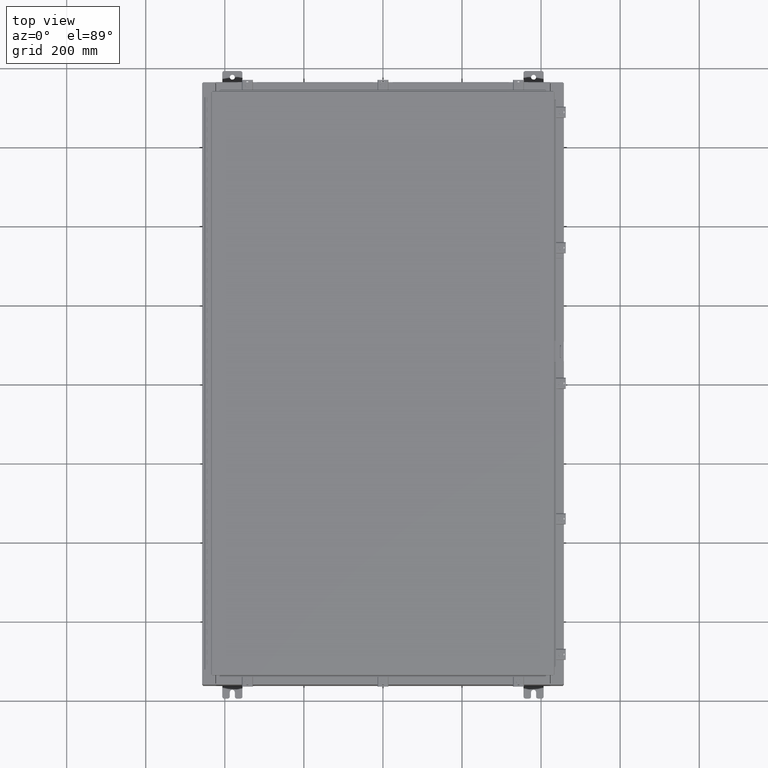
[diagram: clean part render]
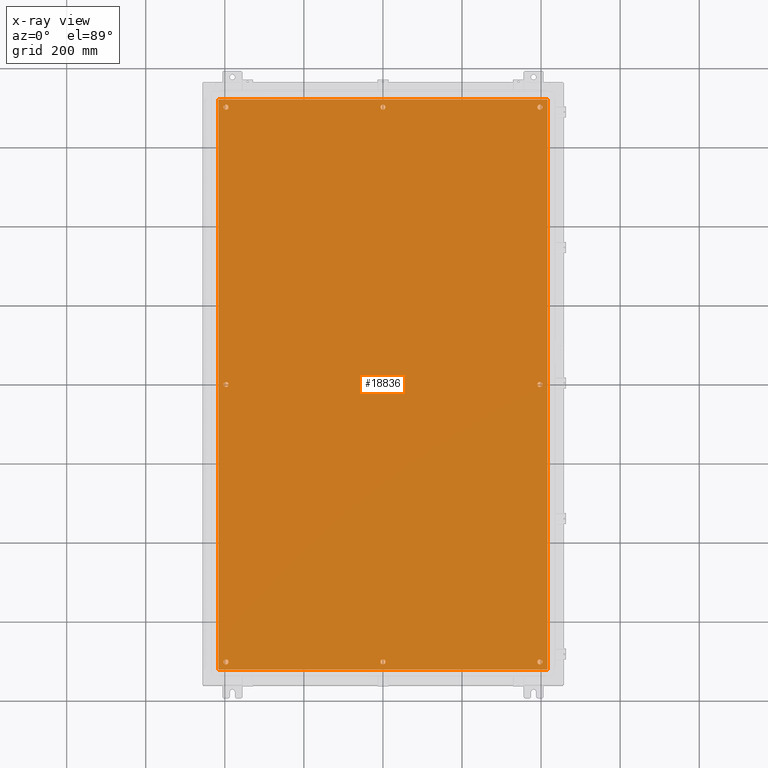
[diagram: x-ray — body ghosted, one internal face saturated and labeled with its STEP entity id]
A machine part, top view, then the same camera in x-ray: the body is ghosted and one INTERNAL B-rep face — a face not visible from any outside direction — is saturated and labeled: STEP entity #18836.
In plain terms, the highlighted planar face has unit normal (0, 0, -1).
Its self-contained STEP definition (entity closure, byte-faithful):
#552 = FACE_BOUND ( 'NONE', #46502, .T. ) ;
#923 = DIRECTION ( 'NONE',  ( -0.0000000000000000000, -0.0000000000000000000, 1.000000000000000000 ) ) ;
#957 = CARTESIAN_POINT ( 'NONE',  ( 0.2499999999999998600, 27.62500000000000000, -0.1039999999999999800 ) ) ;
#1653 = VERTEX_POINT ( 'NONE', #57450 ) ;
#1867 = ORIENTED_EDGE ( 'NONE', *, *, #31578, .T. ) ;
#2081 = CARTESIAN_POINT ( 'NONE',  ( 0.0000000000000000000, -27.62500000000000000, -0.1039999999999999800 ) ) ;
#2138 = CARTESIAN_POINT ( 'NONE',  ( -15.37500000000000900, 27.62500000000000000, -0.1039999999999999800 ) ) ;
#2690 = ORIENTED_EDGE ( 'NONE', *, *, #60956, .T. ) ;
#3044 = VERTEX_POINT ( 'NONE', #5916 ) ;
#4335 = CARTESIAN_POINT ( 'NONE',  ( -15.37500000000000500, -8.298848852119578500E-016, -0.1039999999999999800 ) ) ;
#4345 = VERTEX_POINT ( 'NONE', #40795 ) ;
#5015 = AXIS2_PLACEMENT_3D ( 'NONE', #35952, #5932, #41006 ) ;
#5048 = EDGE_CURVE ( 'NONE', #48228, #54298, #25472, .T. ) ;
#5110 = CARTESIAN_POINT ( 'NONE',  ( -0.2499999999999998600, 27.62500000000000000, -0.1039999999999999800 ) ) ;
#5254 = EDGE_CURVE ( 'NONE', #54298, #48228, #14514, .T. ) ;
#5428 = CARTESIAN_POINT ( 'NONE',  ( -16.38299999999999900, 28.38299999999998800, -0.1040000000000009100 ) ) ;
#5487 = VERTEX_POINT ( 'NONE', #957 ) ;
#5602 = EDGE_LOOP ( 'NONE', ( #55581, #6358 ) ) ;
#5851 = VERTEX_POINT ( 'NONE', #20416 ) ;
#5916 = CARTESIAN_POINT ( 'NONE',  ( 16.38299999999999900, 28.38299999999998800, -0.1040000000000009100 ) ) ;
#5932 = DIRECTION ( 'NONE',  ( -0.0000000000000000000, -0.0000000000000000000, 1.000000000000000000 ) ) ;
#5937 = CARTESIAN_POINT ( 'NONE',  ( 0.0000000000000000000, 27.62500000000000000, -0.1039999999999999800 ) ) ;
#6002 = VERTEX_POINT ( 'NONE', #14684 ) ;
#6038 = CARTESIAN_POINT ( 'NONE',  ( -15.62500000000001100, 27.62500000000000000, -0.1039999999999999800 ) ) ;
#6358 = ORIENTED_EDGE ( 'NONE', *, *, #63969, .T. ) ;
#6682 = EDGE_CURVE ( 'NONE', #5487, #37511, #46946, .T. ) ;
#7013 = DIRECTION ( 'NONE',  ( -1.000000000000000000, 0.0000000000000000000, 0.0000000000000000000 ) ) ;
#7482 = EDGE_CURVE ( 'NONE', #14379, #43139, #61468, .T. ) ;
#7521 = EDGE_LOOP ( 'NONE', ( #11117, #23542 ) ) ;
#7668 = EDGE_CURVE ( 'NONE', #21527, #3044, #12368, .T. ) ;
#8131 = CARTESIAN_POINT ( 'NONE',  ( 15.62500000000000500, 2.997136362123522700E-015, -0.1039999999999999800 ) ) ;
#8157 = DIRECTION ( 'NONE',  ( -0.0000000000000000000, -0.0000000000000000000, 1.000000000000000000 ) ) ;
#10074 = ORIENTED_EDGE ( 'NONE', *, *, #61109, .F. ) ;
#10106 = EDGE_LOOP ( 'NONE', ( #54315, #13879 ) ) ;
#11062 = DIRECTION ( 'NONE',  ( -1.000000000000000000, 0.0000000000000000000, 0.0000000000000000000 ) ) ;
#11117 = ORIENTED_EDGE ( 'NONE', *, *, #7482, .T. ) ;
#11231 = ORIENTED_EDGE ( 'NONE', *, *, #51372, .T. ) ;
#11317 = CARTESIAN_POINT ( 'NONE',  ( -15.87500000000000700, -27.62500000000000000, -0.1039999999999999800 ) ) ;
#11623 = DIRECTION ( 'NONE',  ( -0.0000000000000000000, -0.0000000000000000000, 1.000000000000000000 ) ) ;
#12259 = FACE_BOUND ( 'NONE', #62590, .T. ) ;
#12274 = VECTOR ( 'NONE', #52940, 39.37007874015748100 ) ;
#12368 = LINE ( 'NONE', #53681, #15537 ) ;
#12849 = AXIS2_PLACEMENT_3D ( 'NONE', #16606, #51474, #21612 ) ;
#12875 = DIRECTION ( 'NONE',  ( -0.0000000000000000000, -0.0000000000000000000, 1.000000000000000000 ) ) ;
#13226 = DIRECTION ( 'NONE',  ( -1.000000000000000000, 0.0000000000000000000, 0.0000000000000000000 ) ) ;
#13284 = ORIENTED_EDGE ( 'NONE', *, *, #48054, .T. ) ;
#13594 = DIRECTION ( 'NONE',  ( -0.0000000000000000000, -0.0000000000000000000, 1.000000000000000000 ) ) ;
#13826 = AXIS2_PLACEMENT_3D ( 'NONE', #36123, #57044, #30111 ) ;
#13879 = ORIENTED_EDGE ( 'NONE', *, *, #46025, .T. ) ;
#14192 = AXIS2_PLACEMENT_3D ( 'NONE', #5937, #923, #41760 ) ;
#14379 = VERTEX_POINT ( 'NONE', #4335 ) ;
#14392 = VERTEX_POINT ( 'NONE', #26852 ) ;
#14514 = CIRCLE ( 'NONE', #49661, 0.2499999999999987000 ) ;
#14684 = CARTESIAN_POINT ( 'NONE',  ( -16.38299999999999900, -28.38300000000000600, -0.1040000000000009400 ) ) ;
#14881 = AXIS2_PLACEMENT_3D ( 'NONE', #43566, #13594, #48534 ) ;
#15130 = VERTEX_POINT ( 'NONE', #38849 ) ;
#15449 = EDGE_CURVE ( 'NONE', #37511, #5487, #55674, .T. ) ;
#15537 = VECTOR ( 'NONE', #53049, 39.37007874015748100 ) ;
#15641 = CARTESIAN_POINT ( 'NONE',  ( -15.62500000000000900, -27.62500000000000000, -0.1039999999999999800 ) ) ;
#15777 = DIRECTION ( 'NONE',  ( -0.0000000000000000000, -0.0000000000000000000, 1.000000000000000000 ) ) ;
#16025 = EDGE_LOOP ( 'NONE', ( #11231, #2690 ) ) ;
#16606 = CARTESIAN_POINT ( 'NONE',  ( 15.62500000000000900, 27.62500000000000000, -0.1039999999999999800 ) ) ;
#16608 = CIRCLE ( 'NONE', #5015, 0.2500000000000008900 ) ;
#18008 = CIRCLE ( 'NONE', #31145, 0.2500000000000008900 ) ;
#18712 = EDGE_LOOP ( 'NONE', ( #34322, #38317 ) ) ;
#18836 = ADVANCED_FACE ( 'NONE', ( #25584, #27145, #552, #38903, #12259, #63638, #50555, #37334, #24014 ), #45775, .T. ) ;
#19899 = CIRCLE ( 'NONE', #14881, 0.2499999999999987000 ) ;
#20416 = CARTESIAN_POINT ( 'NONE',  ( 15.87500000000000700, 27.62500000000000000, -0.1039999999999999800 ) ) ;
#20591 = VERTEX_POINT ( 'NONE', #52318 ) ;
#21527 = VERTEX_POINT ( 'NONE', #39999 ) ;
#21612 = DIRECTION ( 'NONE',  ( -1.000000000000000000, 0.0000000000000000000, 0.0000000000000000000 ) ) ;
#21664 = EDGE_CURVE ( 'NONE', #30718, #1653, #62068, .T. ) ;
#22326 = DIRECTION ( 'NONE',  ( -1.000000000000000000, 0.0000000000000000000, 0.0000000000000000000 ) ) ;
#22441 = DIRECTION ( 'NONE',  ( 0.0000000000000000000, -1.000000000000000000, 0.0000000000000000000 ) ) ;
#22862 = LINE ( 'NONE', #57250, #31423 ) ;
#23542 = ORIENTED_EDGE ( 'NONE', *, *, #53157, .T. ) ;
#23661 = CARTESIAN_POINT ( 'NONE',  ( 15.87500000000000700, 2.997136362123522700E-015, -0.1039999999999999800 ) ) ;
#23725 = ORIENTED_EDGE ( 'NONE', *, *, #7668, .F. ) ;
#24014 = FACE_OUTER_BOUND ( 'NONE', #58914, .T. ) ;
#24684 = CARTESIAN_POINT ( 'NONE',  ( 0.2500000000000011700, -27.62500000000000000, -0.1039999999999999800 ) ) ;
#24980 = CARTESIAN_POINT ( 'NONE',  ( 15.62500000000000900, -27.62500000000000000, -0.1039999999999999800 ) ) ;
#25465 = CIRCLE ( 'NONE', #53253, 0.2500000000000008900 ) ;
#25472 = CIRCLE ( 'NONE', #64073, 0.2499999999999987000 ) ;
#25584 = FACE_BOUND ( 'NONE', #36135, .T. ) ;
#25598 = LINE ( 'NONE', #32965, #12274 ) ;
#25845 = ORIENTED_EDGE ( 'NONE', *, *, #5048, .T. ) ;
#26852 = CARTESIAN_POINT ( 'NONE',  ( 15.87500000000000700, -27.62500000000000000, -0.1039999999999999800 ) ) ;
#26903 = EDGE_CURVE ( 'NONE', #30200, #6002, #22862, .T. ) ;
#27145 = FACE_BOUND ( 'NONE', #18712, .T. ) ;
#28611 = ORIENTED_EDGE ( 'NONE', *, *, #41220, .T. ) ;
#29007 = CIRCLE ( 'NONE', #33855, 0.2500000000000008900 ) ;
#29671 = AXIS2_PLACEMENT_3D ( 'NONE', #6038, #41130, #11062 ) ;
#29981 = DIRECTION ( 'NONE',  ( -1.000000000000000000, 0.0000000000000000000, 0.0000000000000000000 ) ) ;
#30111 = DIRECTION ( 'NONE',  ( -1.000000000000000000, 0.0000000000000000000, 0.0000000000000000000 ) ) ;
#30200 = VERTEX_POINT ( 'NONE', #5428 ) ;
#30718 = VERTEX_POINT ( 'NONE', #24684 ) ;
#30995 = CARTESIAN_POINT ( 'NONE',  ( -15.37500000000000900, -27.62500000000000000, -0.1039999999999999800 ) ) ;
#31045 = AXIS2_PLACEMENT_3D ( 'NONE', #2081, #37078, #7013 ) ;
#31145 = AXIS2_PLACEMENT_3D ( 'NONE', #8131, #43232, #13226 ) ;
#31423 = VECTOR ( 'NONE', #22441, 39.37007874015748100 ) ;
#31578 = EDGE_CURVE ( 'NONE', #15130, #54021, #16608, .T. ) ;
#32965 = CARTESIAN_POINT ( 'NONE',  ( 16.50000000000000000, 28.38299999999999600, -0.1040000000000009400 ) ) ;
#33676 = CARTESIAN_POINT ( 'NONE',  ( -15.62500000000000900, -27.62500000000000000, -0.1039999999999999800 ) ) ;
#33855 = AXIS2_PLACEMENT_3D ( 'NONE', #45714, #15777, #50677 ) ;
#33940 = VERTEX_POINT ( 'NONE', #2138 ) ;
#34322 = ORIENTED_EDGE ( 'NONE', *, *, #6682, .T. ) ;
#35121 = AXIS2_PLACEMENT_3D ( 'NONE', #50807, #12875, #48477 ) ;
#35686 = VECTOR ( 'NONE', #45237, 39.37007874015748100 ) ;
#35757 = DIRECTION ( 'NONE',  ( -1.000000000000000000, 0.0000000000000000000, 0.0000000000000000000 ) ) ;
#35952 = CARTESIAN_POINT ( 'NONE',  ( 15.62500000000000500, 2.997136362123522700E-015, -0.1039999999999999800 ) ) ;
#36123 = CARTESIAN_POINT ( 'NONE',  ( 0.0000000000000000000, -27.62500000000000000, -0.1039999999999999800 ) ) ;
#36135 = EDGE_LOOP ( 'NONE', ( #41937, #13284 ) ) ;
#37078 = DIRECTION ( 'NONE',  ( -0.0000000000000000000, -0.0000000000000000000, 1.000000000000000000 ) ) ;
#37287 = LINE ( 'NONE', #40258, #35686 ) ;
#37334 = FACE_BOUND ( 'NONE', #10106, .T. ) ;
#37511 = VERTEX_POINT ( 'NONE', #5110 ) ;
#37840 = DIRECTION ( 'NONE',  ( -0.0000000000000000000, -0.0000000000000000000, 1.000000000000000000 ) ) ;
#38212 = CARTESIAN_POINT ( 'NONE',  ( 15.62500000000000900, -27.62500000000000000, -0.1039999999999999800 ) ) ;
#38317 = ORIENTED_EDGE ( 'NONE', *, *, #15449, .T. ) ;
#38849 = CARTESIAN_POINT ( 'NONE',  ( 15.37500000000000500, 3.027752532102206500E-015, -0.1039999999999999800 ) ) ;
#38903 = FACE_BOUND ( 'NONE', #7521, .T. ) ;
#39297 = CARTESIAN_POINT ( 'NONE',  ( 15.37500000000000900, 27.62500000000000000, -0.1039999999999999800 ) ) ;
#39409 = DIRECTION ( 'NONE',  ( -1.000000000000000000, 0.0000000000000000000, -0.0000000000000000000 ) ) ;
#39999 = CARTESIAN_POINT ( 'NONE',  ( 16.38299999999999900, -28.38300000000000600, -0.1040000000000009100 ) ) ;
#40258 = CARTESIAN_POINT ( 'NONE',  ( -16.50000000000000000, -28.38300000000000600, -0.1040000000000009400 ) ) ;
#40540 = CIRCLE ( 'NONE', #29671, 0.2500000000000008900 ) ;
#40795 = CARTESIAN_POINT ( 'NONE',  ( -15.87500000000001100, 27.62500000000000000, -0.1039999999999999800 ) ) ;
#41006 = DIRECTION ( 'NONE',  ( -1.000000000000000000, 0.0000000000000000000, 0.0000000000000000000 ) ) ;
#41130 = DIRECTION ( 'NONE',  ( -0.0000000000000000000, -0.0000000000000000000, 1.000000000000000000 ) ) ;
#41220 = EDGE_CURVE ( 'NONE', #54021, #15130, #18008, .T. ) ;
#41672 = CARTESIAN_POINT ( 'NONE',  ( -15.62500000000001100, 27.62500000000000000, -0.1039999999999999800 ) ) ;
#41760 = DIRECTION ( 'NONE',  ( -1.000000000000000000, 0.0000000000000000000, 0.0000000000000000000 ) ) ;
#41937 = ORIENTED_EDGE ( 'NONE', *, *, #21664, .T. ) ;
#43139 = VERTEX_POINT ( 'NONE', #55857 ) ;
#43232 = DIRECTION ( 'NONE',  ( -0.0000000000000000000, -0.0000000000000000000, 1.000000000000000000 ) ) ;
#43264 = DIRECTION ( 'NONE',  ( -1.000000000000000000, 0.0000000000000000000, 0.0000000000000000000 ) ) ;
#43566 = CARTESIAN_POINT ( 'NONE',  ( 15.62500000000000900, 27.62500000000000000, -0.1039999999999999800 ) ) ;
#43891 = DIRECTION ( 'NONE',  ( 0.0000000000000000000, 0.0000000000000000000, -1.000000000000000000 ) ) ;
#45237 = DIRECTION ( 'NONE',  ( 1.000000000000000000, -0.0000000000000000000, -0.0000000000000000000 ) ) ;
#45579 = DIRECTION ( 'NONE',  ( -0.0000000000000000000, -0.0000000000000000000, 1.000000000000000000 ) ) ;
#45714 = CARTESIAN_POINT ( 'NONE',  ( -15.62500000000000500, -8.298848852119578500E-016, -0.1039999999999999800 ) ) ;
#45775 = PLANE ( 'NONE',  #54191 ) ;
#45899 = CARTESIAN_POINT ( 'NONE',  ( 0.0000000000000000000, 0.0000000000000000000, -0.1039999999999999800 ) ) ;
#46025 = EDGE_CURVE ( 'NONE', #4345, #33940, #40540, .T. ) ;
#46502 = EDGE_LOOP ( 'NONE', ( #28611, #1867 ) ) ;
#46651 = DIRECTION ( 'NONE',  ( -1.000000000000000000, 0.0000000000000000000, 0.0000000000000000000 ) ) ;
#46946 = CIRCLE ( 'NONE', #60015, 0.2499999999999998600 ) ;
#48054 = EDGE_CURVE ( 'NONE', #1653, #30718, #51725, .T. ) ;
#48059 = DIRECTION ( 'NONE',  ( -0.0000000000000000000, -0.0000000000000000000, 1.000000000000000000 ) ) ;
#48228 = VERTEX_POINT ( 'NONE', #30995 ) ;
#48477 = DIRECTION ( 'NONE',  ( -1.000000000000000000, 0.0000000000000000000, 0.0000000000000000000 ) ) ;
#48534 = DIRECTION ( 'NONE',  ( -1.000000000000000000, 0.0000000000000000000, 0.0000000000000000000 ) ) ;
#49661 = AXIS2_PLACEMENT_3D ( 'NONE', #15641, #45579, #22326 ) ;
#49816 = CIRCLE ( 'NONE', #12849, 0.2499999999999987000 ) ;
#50072 = ORIENTED_EDGE ( 'NONE', *, *, #63601, .F. ) ;
#50250 = VERTEX_POINT ( 'NONE', #39297 ) ;
#50521 = EDGE_CURVE ( 'NONE', #33940, #4345, #25465, .T. ) ;
#50555 = FACE_BOUND ( 'NONE', #16025, .T. ) ;
#50677 = DIRECTION ( 'NONE',  ( -1.000000000000000000, 0.0000000000000000000, 0.0000000000000000000 ) ) ;
#50807 = CARTESIAN_POINT ( 'NONE',  ( -15.62500000000000500, -8.298848852119578500E-016, -0.1039999999999999800 ) ) ;
#51372 = EDGE_CURVE ( 'NONE', #5851, #50250, #19899, .T. ) ;
#51474 = DIRECTION ( 'NONE',  ( -0.0000000000000000000, -0.0000000000000000000, 1.000000000000000000 ) ) ;
#51725 = CIRCLE ( 'NONE', #31045, 0.2500000000000011700 ) ;
#51940 = CARTESIAN_POINT ( 'NONE',  ( 0.0000000000000000000, 27.62500000000000000, -0.1039999999999999800 ) ) ;
#52318 = CARTESIAN_POINT ( 'NONE',  ( 15.37500000000000900, -27.62500000000000000, -0.1039999999999999800 ) ) ;
#52940 = DIRECTION ( 'NONE',  ( -1.000000000000000000, -0.0000000000000000000, -0.0000000000000000000 ) ) ;
#53049 = DIRECTION ( 'NONE',  ( 0.0000000000000000000, 1.000000000000000000, 0.0000000000000000000 ) ) ;
#53157 = EDGE_CURVE ( 'NONE', #43139, #14379, #29007, .T. ) ;
#53253 = AXIS2_PLACEMENT_3D ( 'NONE', #41672, #11623, #46651 ) ;
#53508 = CIRCLE ( 'NONE', #56843, 0.2499999999999987000 ) ;
#53681 = CARTESIAN_POINT ( 'NONE',  ( 16.38299999999999900, -28.38300000000000600, -0.1040000000000009100 ) ) ;
#54021 = VERTEX_POINT ( 'NONE', #23661 ) ;
#54191 = AXIS2_PLACEMENT_3D ( 'NONE', #45899, #43891, #39409 ) ;
#54298 = VERTEX_POINT ( 'NONE', #11317 ) ;
#54315 = ORIENTED_EDGE ( 'NONE', *, *, #50521, .T. ) ;
#54788 = DIRECTION ( 'NONE',  ( -1.000000000000000000, 0.0000000000000000000, 0.0000000000000000000 ) ) ;
#54930 = EDGE_CURVE ( 'NONE', #14392, #20591, #55285, .T. ) ;
#55285 = CIRCLE ( 'NONE', #57246, 0.2499999999999987000 ) ;
#55581 = ORIENTED_EDGE ( 'NONE', *, *, #54930, .T. ) ;
#55674 = CIRCLE ( 'NONE', #14192, 0.2499999999999998600 ) ;
#55857 = CARTESIAN_POINT ( 'NONE',  ( -15.87500000000000700, -7.992687152332741600E-016, -0.1039999999999999800 ) ) ;
#56297 = ORIENTED_EDGE ( 'NONE', *, *, #26903, .F. ) ;
#56843 = AXIS2_PLACEMENT_3D ( 'NONE', #38212, #8157, #43264 ) ;
#57044 = DIRECTION ( 'NONE',  ( -0.0000000000000000000, -0.0000000000000000000, 1.000000000000000000 ) ) ;
#57171 = ORIENTED_EDGE ( 'NONE', *, *, #5254, .T. ) ;
#57246 = AXIS2_PLACEMENT_3D ( 'NONE', #24980, #59742, #29981 ) ;
#57250 = CARTESIAN_POINT ( 'NONE',  ( -16.38299999999999900, 28.38299999999998800, -0.1040000000000009100 ) ) ;
#57450 = CARTESIAN_POINT ( 'NONE',  ( -0.2500000000000011700, -27.62500000000000000, -0.1039999999999999800 ) ) ;
#58914 = EDGE_LOOP ( 'NONE', ( #50072, #56297, #10074, #23725 ) ) ;
#59742 = DIRECTION ( 'NONE',  ( -0.0000000000000000000, -0.0000000000000000000, 1.000000000000000000 ) ) ;
#60015 = AXIS2_PLACEMENT_3D ( 'NONE', #51940, #48059, #54788 ) ;
#60956 = EDGE_CURVE ( 'NONE', #50250, #5851, #49816, .T. ) ;
#61109 = EDGE_CURVE ( 'NONE', #3044, #30200, #25598, .T. ) ;
#61468 = CIRCLE ( 'NONE', #35121, 0.2500000000000008900 ) ;
#62068 = CIRCLE ( 'NONE', #13826, 0.2500000000000011700 ) ;
#62590 = EDGE_LOOP ( 'NONE', ( #25845, #57171 ) ) ;
#63601 = EDGE_CURVE ( 'NONE', #6002, #21527, #37287, .T. ) ;
#63638 = FACE_BOUND ( 'NONE', #5602, .T. ) ;
#63969 = EDGE_CURVE ( 'NONE', #20591, #14392, #53508, .T. ) ;
#64073 = AXIS2_PLACEMENT_3D ( 'NONE', #33676, #37840, #35757 ) ;